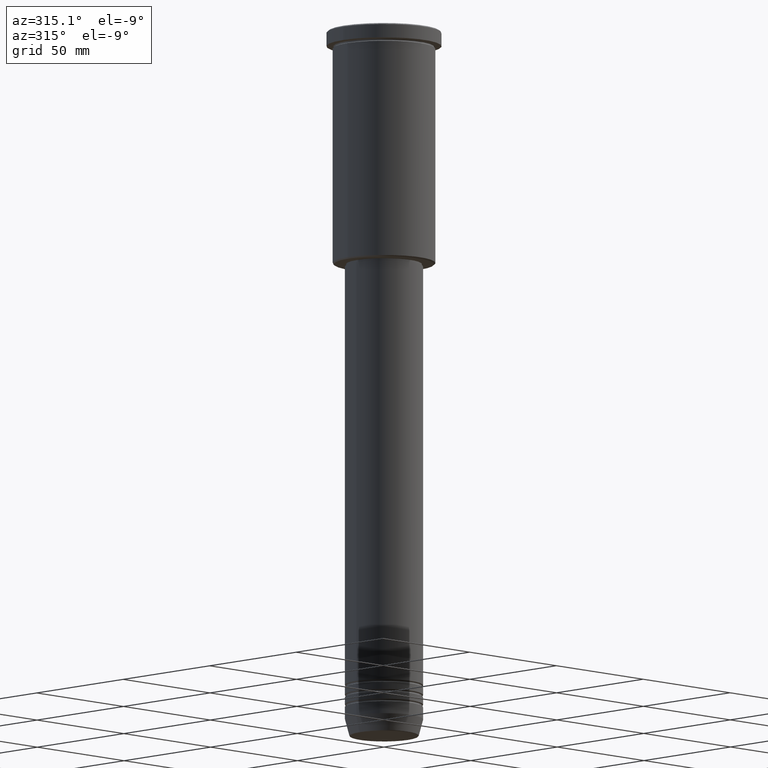
[diagram: clean part render]
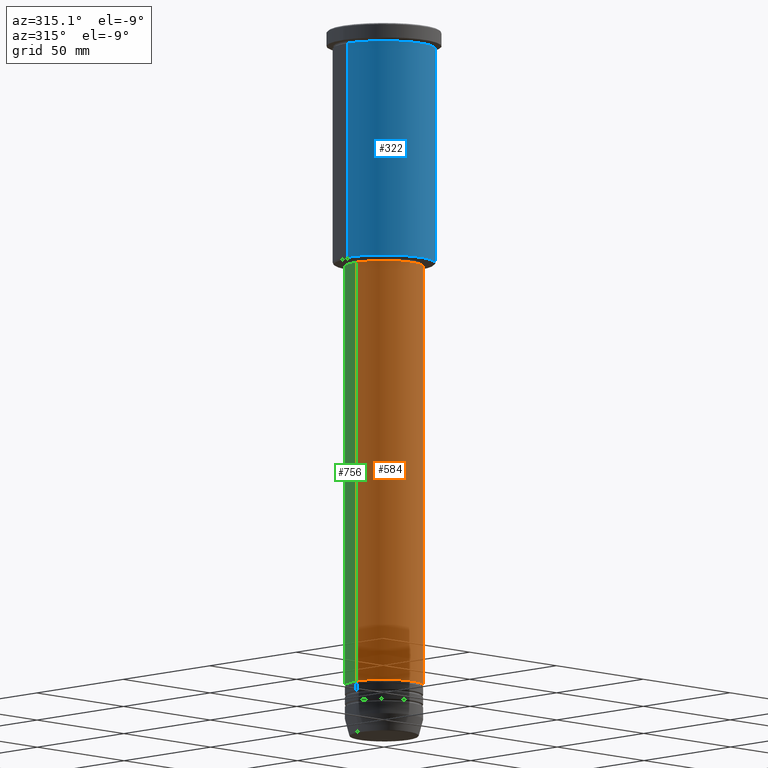
[diagram: same view with three faces highlighted in distinct colors, each labeled with its STEP entity id]
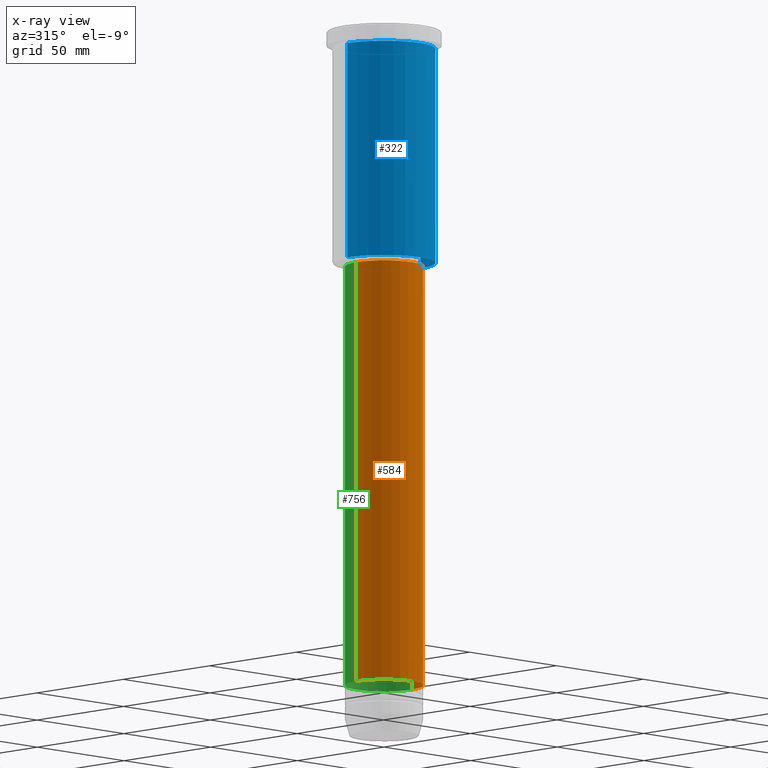
[diagram: x-ray of the same camera — body ghosted, the three highlighted faces saturated]
A machine part, auxiliary view with three faces highlighted in distinct colors.
The next image is the same camera in x-ray (body ghosted, the three faces saturated) — at least one of them is partly hidden behind the body in this view.
Their STEP definitions:

[orange] entity #584 — the highlighted cylindrical surface (partial cylindrical patch) has radius 16 mm, axis along (-0, -0, 1).
#71 = DIRECTION ( 'NONE',  ( -0.000000000000000000, -0.000000000000000000, 1.000000000000000000 ) ) ;
#101 = EDGE_CURVE ( 'NONE', #351, #478, #187, .T. ) ;
#126 = EDGE_CURVE ( 'NONE', #729, #351, #1025, .T. ) ;
#156 = EDGE_LOOP ( 'NONE', ( #776, #965, #611, #908 ) ) ;
#187 = CIRCLE ( 'NONE', #205, 16.00000000000000355 ) ;
#205 = AXIS2_PLACEMENT_3D ( 'NONE', #615, #797, #710 ) ;
#215 = EDGE_CURVE ( 'NONE', #327, #478, #1095, .T. ) ;
#216 = CARTESIAN_POINT ( 'NONE',  ( -16.00000000000000355, 1.959434878635765526E-15, -96.99999999999994316 ) ) ;
#276 = CYLINDRICAL_SURFACE ( 'NONE', #1002, 16.00000000000000000 ) ;
#327 = VERTEX_POINT ( 'NONE', #862 ) ;
#351 = VERTEX_POINT ( 'NONE', #216 ) ;
#411 = VECTOR ( 'NONE', #573, 1000.000000000000000 ) ;
#457 = CARTESIAN_POINT ( 'NONE',  ( -16.00000000000000000, 1.959434878635765131E-15, 0.000000000000000000 ) ) ;
#478 = VERTEX_POINT ( 'NONE', #1086 ) ;
#573 = DIRECTION ( 'NONE',  ( -0.000000000000000000, -0.000000000000000000, 1.000000000000000000 ) ) ;
#584 = ADVANCED_FACE ( 'NONE', ( #649 ), #276, .T. ) ;
#611 = ORIENTED_EDGE ( 'NONE', *, *, #215, .T. ) ;
#615 = CARTESIAN_POINT ( 'NONE',  ( 0.000000000000000000, 0.000000000000000000, -96.99999999999994316 ) ) ;
#645 = DIRECTION ( 'NONE',  ( -0.000000000000000000, -0.000000000000000000, 1.000000000000000000 ) ) ;
#649 = FACE_OUTER_BOUND ( 'NONE', #156, .T. ) ;
#654 = CARTESIAN_POINT ( 'NONE',  ( 0.000000000000000000, 0.000000000000000000, 0.000000000000000000 ) ) ;
#702 = CARTESIAN_POINT ( 'NONE',  ( 0.000000000000000000, 0.000000000000000000, -269.9999999999998863 ) ) ;
#710 = DIRECTION ( 'NONE',  ( 1.000000000000000000, 0.000000000000000000, 0.000000000000000000 ) ) ;
#729 = VERTEX_POINT ( 'NONE', #766 ) ;
#739 = DIRECTION ( 'NONE',  ( -0.000000000000000000, -0.000000000000000000, 1.000000000000000000 ) ) ;
#766 = CARTESIAN_POINT ( 'NONE',  ( -16.00000000000000000, 1.959434878635765131E-15, -269.9999999999998863 ) ) ;
#772 = AXIS2_PLACEMENT_3D ( 'NONE', #702, #71, #878 ) ;
#776 = ORIENTED_EDGE ( 'NONE', *, *, #126, .F. ) ;
#797 = DIRECTION ( 'NONE',  ( -0.000000000000000000, -0.000000000000000000, 1.000000000000000000 ) ) ;
#862 = CARTESIAN_POINT ( 'NONE',  ( 16.00000000000000000, 0.000000000000000000, -269.9999999999998863 ) ) ;
#878 = DIRECTION ( 'NONE',  ( 1.000000000000000000, 0.000000000000000000, 0.000000000000000000 ) ) ;
#893 = EDGE_CURVE ( 'NONE', #729, #327, #906, .T. ) ;
#906 = CIRCLE ( 'NONE', #772, 16.00000000000000000 ) ;
#908 = ORIENTED_EDGE ( 'NONE', *, *, #101, .F. ) ;
#965 = ORIENTED_EDGE ( 'NONE', *, *, #893, .T. ) ;
#981 = VECTOR ( 'NONE', #645, 1000.000000000000000 ) ;
#1002 = AXIS2_PLACEMENT_3D ( 'NONE', #654, #739, #1101 ) ;
#1012 = CARTESIAN_POINT ( 'NONE',  ( 16.00000000000000000, 0.000000000000000000, 0.000000000000000000 ) ) ;
#1025 = LINE ( 'NONE', #457, #411 ) ;
#1086 = CARTESIAN_POINT ( 'NONE',  ( 16.00000000000000355, 0.000000000000000000, -96.99999999999994316 ) ) ;
#1095 = LINE ( 'NONE', #1012, #981 ) ;
#1101 = DIRECTION ( 'NONE',  ( 1.000000000000000000, 0.000000000000000000, 0.000000000000000000 ) ) ;

[blue] entity #322 — the highlighted cylindrical surface (partial cylindrical patch) has radius 21 mm, axis along (-0, -0, 1).
#10 = DIRECTION ( 'NONE',  ( -0.000000000000000000, -0.000000000000000000, 1.000000000000000000 ) ) ;
#13 = AXIS2_PLACEMENT_3D ( 'NONE', #145, #501, #124 ) ;
#22 = DIRECTION ( 'NONE',  ( -1.000000000000000000, 0.000000000000000000, 0.000000000000000000 ) ) ;
#35 = VECTOR ( 'NONE', #860, 1000.000000000000000 ) ;
#42 = EDGE_LOOP ( 'NONE', ( #1063, #656, #764, #1096 ) ) ;
#50 = LINE ( 'NONE', #504, #35 ) ;
#124 = DIRECTION ( 'NONE',  ( 1.000000000000000000, 0.000000000000000000, 0.000000000000000000 ) ) ;
#129 = CIRCLE ( 'NONE', #529, 21.00000000000000000 ) ;
#145 = CARTESIAN_POINT ( 'NONE',  ( 0.000000000000000000, 0.000000000000000000, 0.000000000000000000 ) ) ;
#201 = LINE ( 'NONE', #464, #228 ) ;
#228 = VECTOR ( 'NONE', #545, 1000.000000000000000 ) ;
#230 = VERTEX_POINT ( 'NONE', #907 ) ;
#238 = EDGE_CURVE ( 'NONE', #281, #574, #129, .T. ) ;
#281 = VERTEX_POINT ( 'NONE', #1143 ) ;
#322 = ADVANCED_FACE ( 'NONE', ( #1049 ), #956, .T. ) ;
#366 = CARTESIAN_POINT ( 'NONE',  ( 21.00000000000000000, 0.000000000000000000, -6.999999999999993783 ) ) ;
#372 = DIRECTION ( 'NONE',  ( 1.000000000000000000, 0.000000000000000000, 0.000000000000000000 ) ) ;
#397 = CARTESIAN_POINT ( 'NONE',  ( -21.00000000000000000, 2.571758278209441661E-15, -95.50000000000004263 ) ) ;
#462 = CARTESIAN_POINT ( 'NONE',  ( 0.000000000000000000, 0.000000000000000000, -6.999999999999993783 ) ) ;
#464 = CARTESIAN_POINT ( 'NONE',  ( -21.00000000000000000, 2.571758278209441661E-15, 0.000000000000000000 ) ) ;
#501 = DIRECTION ( 'NONE',  ( -0.000000000000000000, -0.000000000000000000, 1.000000000000000000 ) ) ;
#504 = CARTESIAN_POINT ( 'NONE',  ( 21.00000000000000000, 0.000000000000000000, 0.000000000000000000 ) ) ;
#529 = AXIS2_PLACEMENT_3D ( 'NONE', #462, #10, #372 ) ;
#545 = DIRECTION ( 'NONE',  ( -0.000000000000000000, -0.000000000000000000, 1.000000000000000000 ) ) ;
#559 = CARTESIAN_POINT ( 'NONE',  ( 0.000000000000000000, 0.000000000000000000, -95.50000000000004263 ) ) ;
#574 = VERTEX_POINT ( 'NONE', #366 ) ;
#656 = ORIENTED_EDGE ( 'NONE', *, *, #1111, .T. ) ;
#764 = ORIENTED_EDGE ( 'NONE', *, *, #768, .T. ) ;
#768 = EDGE_CURVE ( 'NONE', #230, #574, #50, .T. ) ;
#794 = VERTEX_POINT ( 'NONE', #397 ) ;
#860 = DIRECTION ( 'NONE',  ( -0.000000000000000000, -0.000000000000000000, 1.000000000000000000 ) ) ;
#907 = CARTESIAN_POINT ( 'NONE',  ( 21.00000000000000000, 0.000000000000000000, -95.50000000000004263 ) ) ;
#916 = DIRECTION ( 'NONE',  ( -0.000000000000000000, -0.000000000000000000, 1.000000000000000000 ) ) ;
#956 = CYLINDRICAL_SURFACE ( 'NONE', #13, 21.00000000000000000 ) ;
#967 = AXIS2_PLACEMENT_3D ( 'NONE', #559, #916, #22 ) ;
#1020 = EDGE_CURVE ( 'NONE', #794, #281, #201, .T. ) ;
#1049 = FACE_OUTER_BOUND ( 'NONE', #42, .T. ) ;
#1063 = ORIENTED_EDGE ( 'NONE', *, *, #1020, .F. ) ;
#1065 = CIRCLE ( 'NONE', #967, 21.00000000000000000 ) ;
#1096 = ORIENTED_EDGE ( 'NONE', *, *, #238, .F. ) ;
#1111 = EDGE_CURVE ( 'NONE', #794, #230, #1065, .T. ) ;
#1143 = CARTESIAN_POINT ( 'NONE',  ( -21.00000000000000000, 2.571758278209441661E-15, -6.999999999999993783 ) ) ;

[green] entity #756 — the highlighted cylindrical surface (partial cylindrical patch) has radius 16 mm, axis along (-0, -0, 1).
#15 = DIRECTION ( 'NONE',  ( -0.000000000000000000, -0.000000000000000000, 1.000000000000000000 ) ) ;
#44 = DIRECTION ( 'NONE',  ( 1.000000000000000000, 0.000000000000000000, 0.000000000000000000 ) ) ;
#126 = EDGE_CURVE ( 'NONE', #729, #351, #1025, .T. ) ;
#171 = CIRCLE ( 'NONE', #587, 16.00000000000000000 ) ;
#191 = CARTESIAN_POINT ( 'NONE',  ( 0.000000000000000000, 0.000000000000000000, -269.9999999999998863 ) ) ;
#204 = ORIENTED_EDGE ( 'NONE', *, *, #215, .F. ) ;
#208 = CIRCLE ( 'NONE', #1042, 16.00000000000000355 ) ;
#215 = EDGE_CURVE ( 'NONE', #327, #478, #1095, .T. ) ;
#216 = CARTESIAN_POINT ( 'NONE',  ( -16.00000000000000355, 1.959434878635765526E-15, -96.99999999999994316 ) ) ;
#237 = ORIENTED_EDGE ( 'NONE', *, *, #802, .F. ) ;
#247 = AXIS2_PLACEMENT_3D ( 'NONE', #774, #1039, #44 ) ;
#327 = VERTEX_POINT ( 'NONE', #862 ) ;
#346 = ORIENTED_EDGE ( 'NONE', *, *, #126, .T. ) ;
#351 = VERTEX_POINT ( 'NONE', #216 ) ;
#400 = DIRECTION ( 'NONE',  ( -0.000000000000000000, -0.000000000000000000, 1.000000000000000000 ) ) ;
#406 = FACE_OUTER_BOUND ( 'NONE', #1088, .T. ) ;
#411 = VECTOR ( 'NONE', #573, 1000.000000000000000 ) ;
#457 = CARTESIAN_POINT ( 'NONE',  ( -16.00000000000000000, 1.959434878635765131E-15, 0.000000000000000000 ) ) ;
#478 = VERTEX_POINT ( 'NONE', #1086 ) ;
#573 = DIRECTION ( 'NONE',  ( -0.000000000000000000, -0.000000000000000000, 1.000000000000000000 ) ) ;
#587 = AXIS2_PLACEMENT_3D ( 'NONE', #191, #15, #721 ) ;
#645 = DIRECTION ( 'NONE',  ( -0.000000000000000000, -0.000000000000000000, 1.000000000000000000 ) ) ;
#721 = DIRECTION ( 'NONE',  ( 1.000000000000000000, 0.000000000000000000, 0.000000000000000000 ) ) ;
#729 = VERTEX_POINT ( 'NONE', #766 ) ;
#748 = DIRECTION ( 'NONE',  ( 1.000000000000000000, 0.000000000000000000, 0.000000000000000000 ) ) ;
#756 = ADVANCED_FACE ( 'NONE', ( #406 ), #1135, .T. ) ;
#766 = CARTESIAN_POINT ( 'NONE',  ( -16.00000000000000000, 1.959434878635765131E-15, -269.9999999999998863 ) ) ;
#774 = CARTESIAN_POINT ( 'NONE',  ( 0.000000000000000000, 0.000000000000000000, 0.000000000000000000 ) ) ;
#802 = EDGE_CURVE ( 'NONE', #478, #351, #208, .T. ) ;
#862 = CARTESIAN_POINT ( 'NONE',  ( 16.00000000000000000, 0.000000000000000000, -269.9999999999998863 ) ) ;
#869 = CARTESIAN_POINT ( 'NONE',  ( 0.000000000000000000, 0.000000000000000000, -96.99999999999994316 ) ) ;
#981 = VECTOR ( 'NONE', #645, 1000.000000000000000 ) ;
#1012 = CARTESIAN_POINT ( 'NONE',  ( 16.00000000000000000, 0.000000000000000000, 0.000000000000000000 ) ) ;
#1014 = EDGE_CURVE ( 'NONE', #327, #729, #171, .T. ) ;
#1025 = LINE ( 'NONE', #457, #411 ) ;
#1039 = DIRECTION ( 'NONE',  ( -0.000000000000000000, -0.000000000000000000, 1.000000000000000000 ) ) ;
#1042 = AXIS2_PLACEMENT_3D ( 'NONE', #869, #400, #748 ) ;
#1086 = CARTESIAN_POINT ( 'NONE',  ( 16.00000000000000355, 0.000000000000000000, -96.99999999999994316 ) ) ;
#1088 = EDGE_LOOP ( 'NONE', ( #1182, #346, #237, #204 ) ) ;
#1095 = LINE ( 'NONE', #1012, #981 ) ;
#1135 = CYLINDRICAL_SURFACE ( 'NONE', #247, 16.00000000000000000 ) ;
#1182 = ORIENTED_EDGE ( 'NONE', *, *, #1014, .T. ) ;